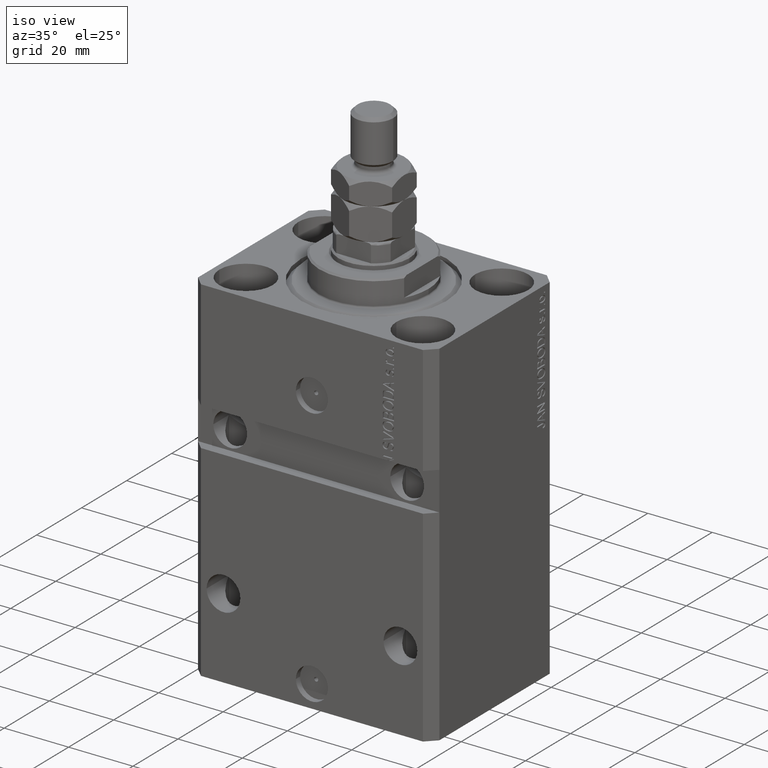
[diagram: clean part render]
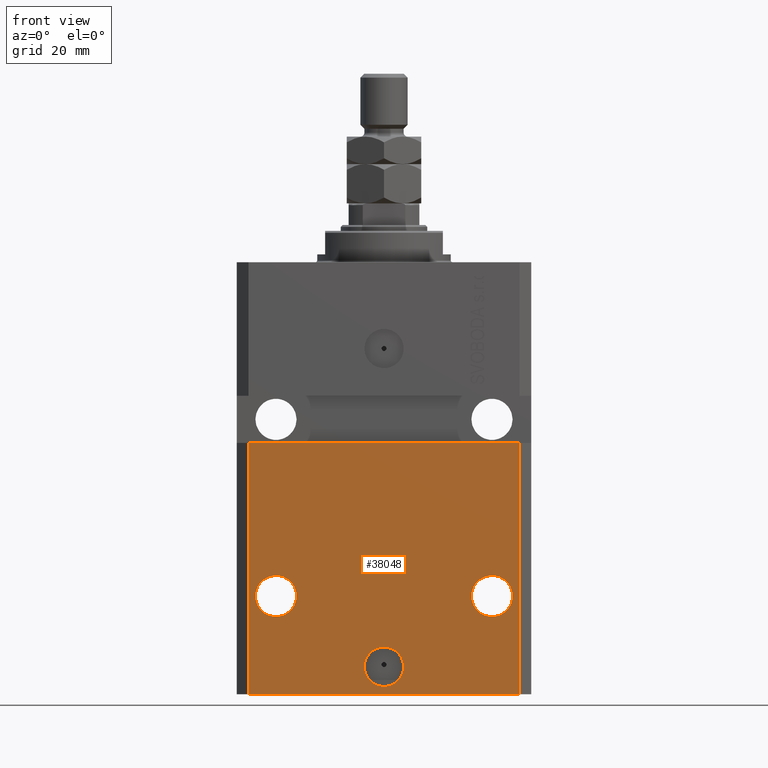
[diagram: tour spotlight — one face highlighted and labeled with its STEP entity id]
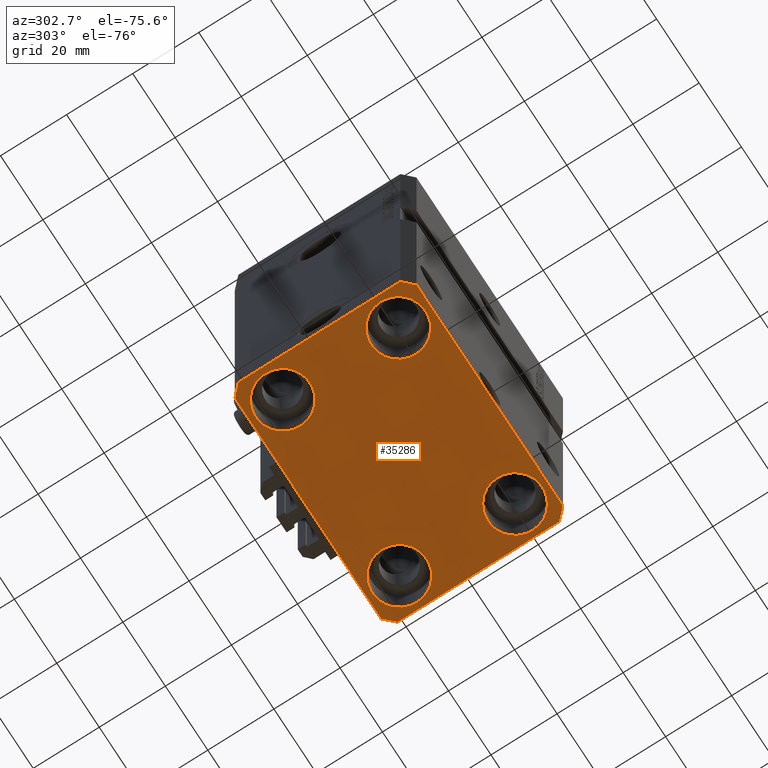
[diagram: tour spotlight — one face highlighted and labeled with its STEP entity id]
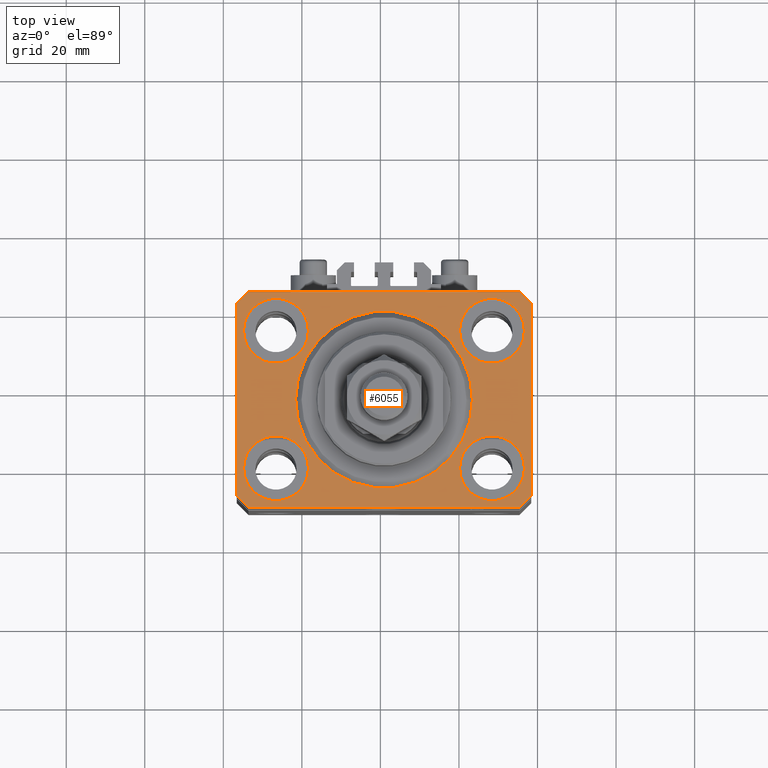
[diagram: tour spotlight — one face highlighted and labeled with its STEP entity id]
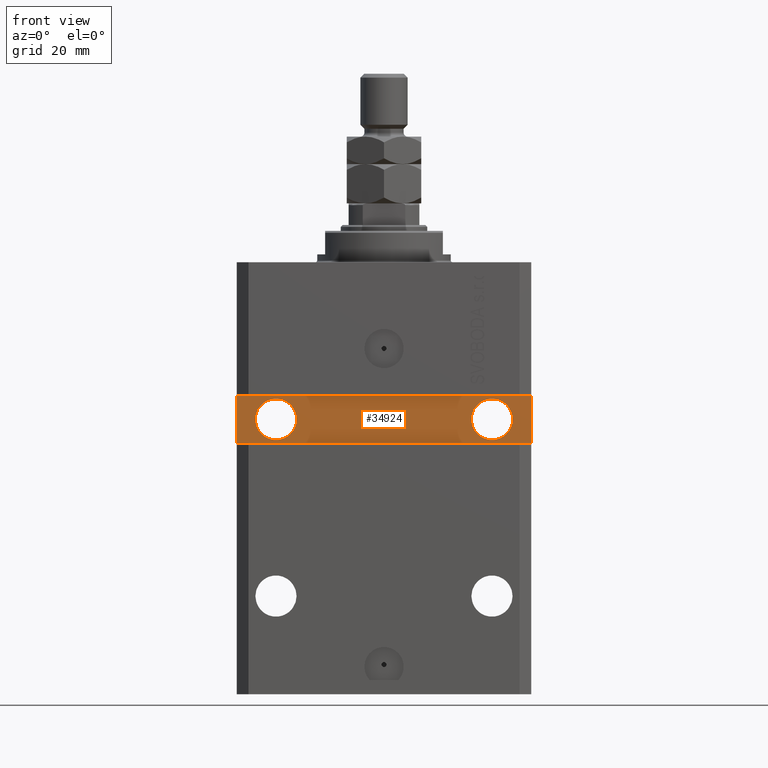
[diagram: tour spotlight — one face highlighted and labeled with its STEP entity id]
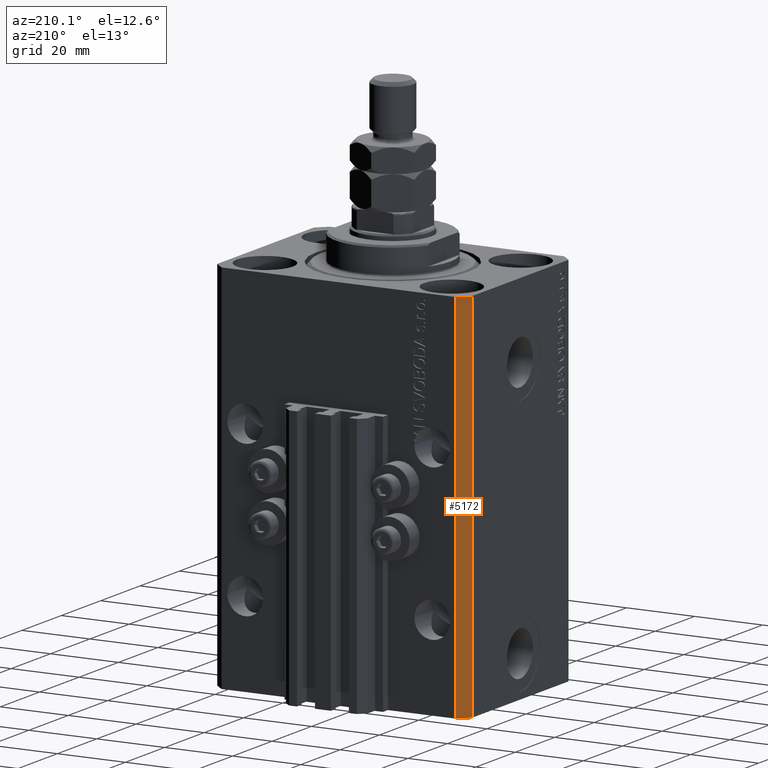
[diagram: tour spotlight — one face highlighted and labeled with its STEP entity id]
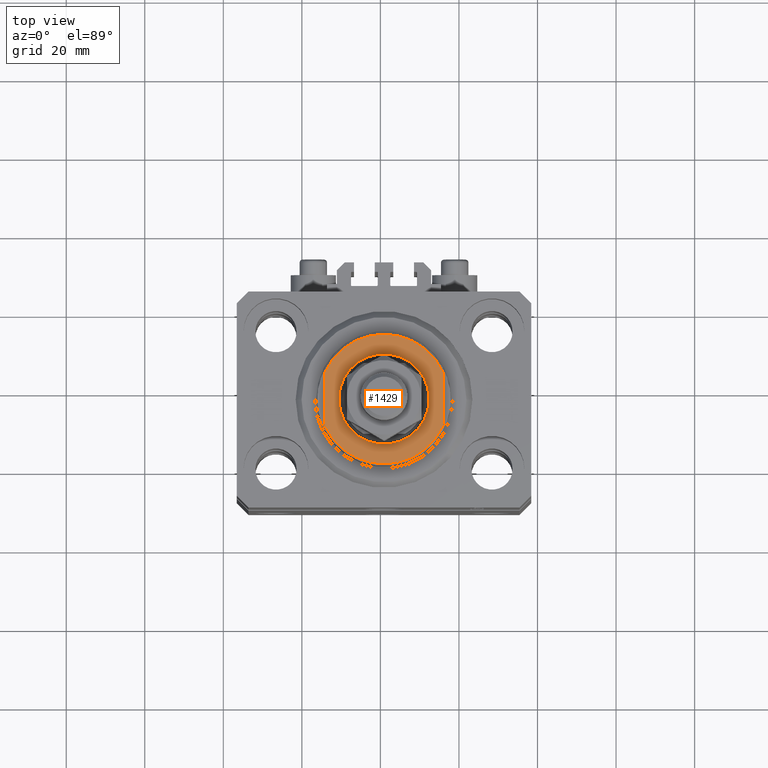
[diagram: tour spotlight — one face highlighted and labeled with its STEP entity id]
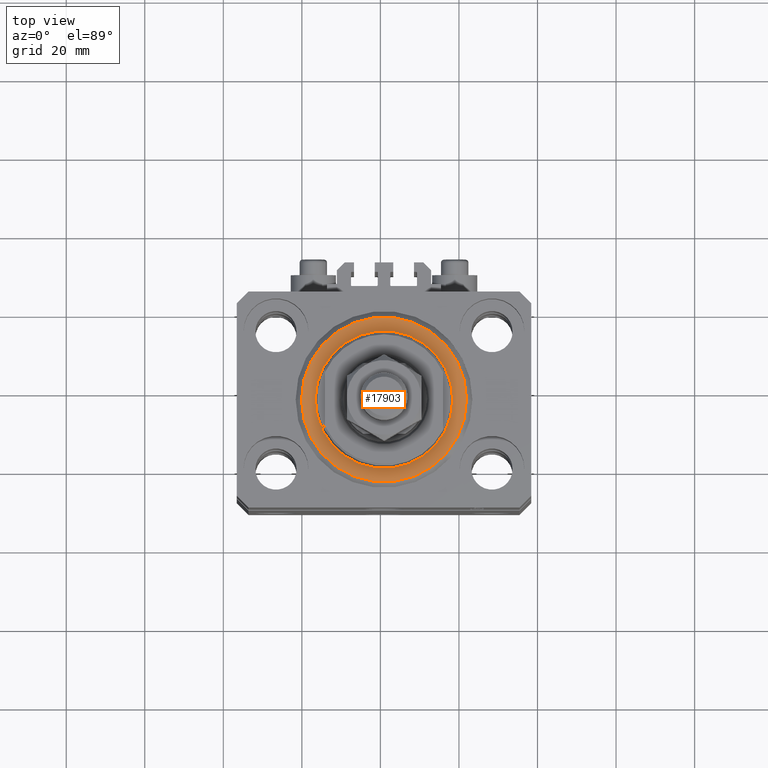
[diagram: tour spotlight — one face highlighted and labeled with its STEP entity id]
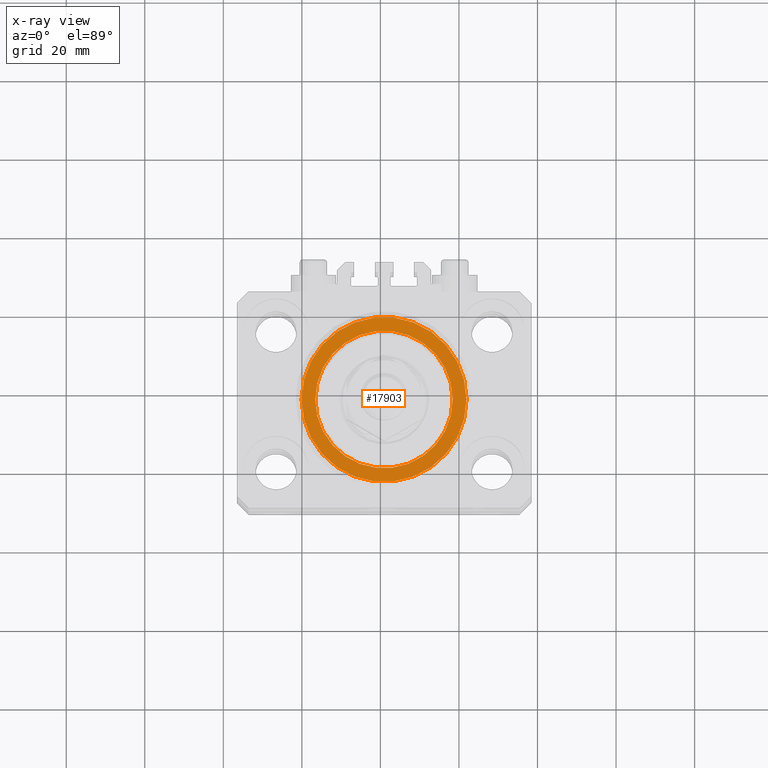
[diagram: x-ray of the same camera — body ghosted, this tour face saturated]
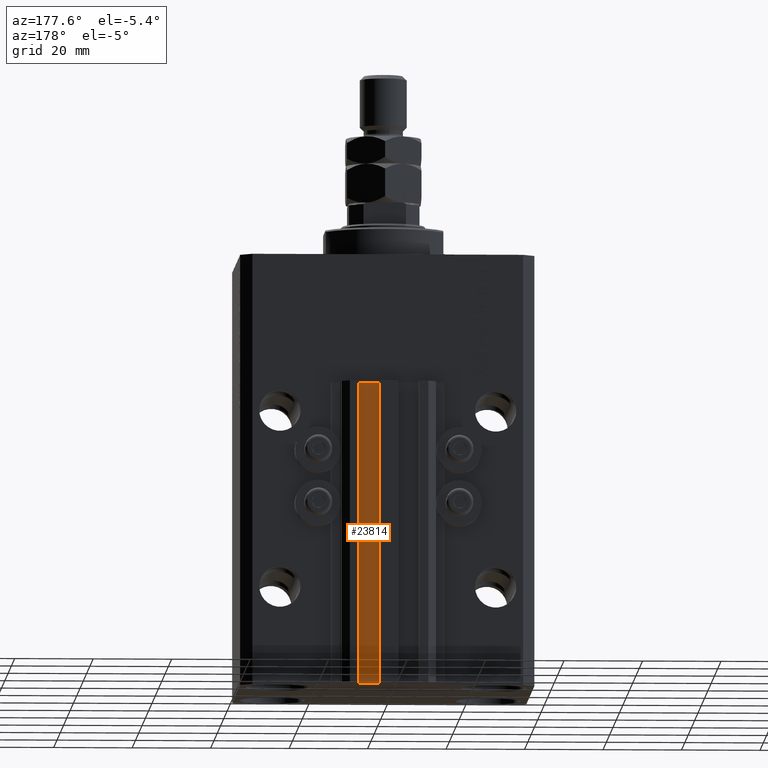
[diagram: tour spotlight — one face highlighted and labeled with its STEP entity id]
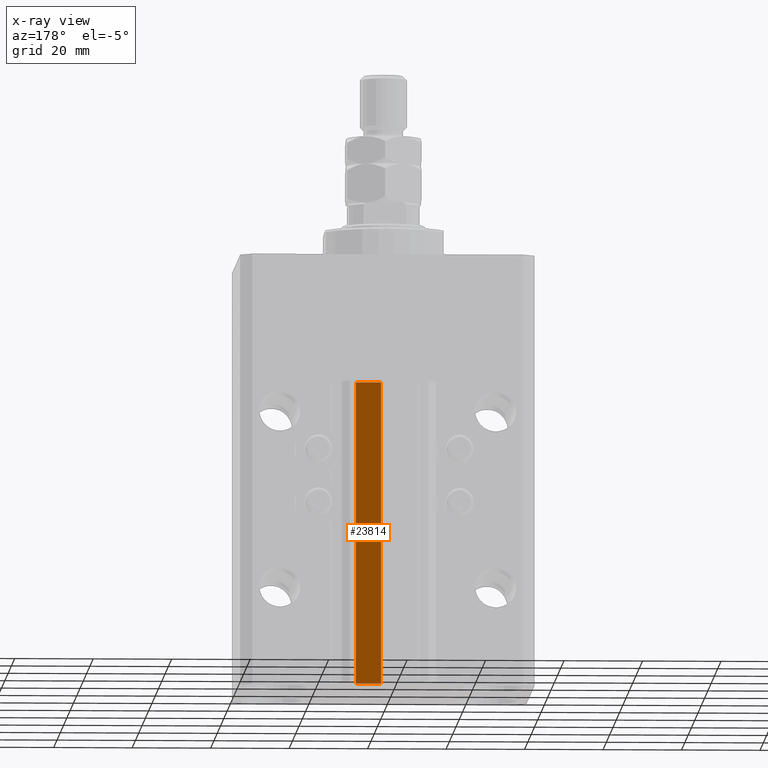
[diagram: x-ray of the same camera — body ghosted, this tour face saturated]
A machine part: a face-by-face anatomy tour. The part has 1133 B-rep faces; the first image is the clean iso view, then the 8 largest visible faces are spotlighted one at a time (largest first), each with its STEP entity span.

Face 1 — front view, entity #38048. In plain terms, the highlighted planar face has unit normal (0, -1, 0).
Definition (entity closure, byte-faithful):
#106 = VECTOR ( 'NONE', #40966, 1000.000000000000000 ) ;
#1603 = CIRCLE ( 'NONE', #10305, 5.249999999999994671 ) ;
#2224 = EDGE_CURVE ( 'NONE', #17866, #39886, #28476, .T. ) ;
#2874 = VERTEX_POINT ( 'NONE', #47853 ) ;
#3525 = LINE ( 'NONE', #22601, #45250 ) ;
#3618 = LINE ( 'NONE', #44459, #106 ) ;
#3671 = DIRECTION ( 'NONE',  ( 1.176083712526788232E-16, -1.000000000000000000, 0.000000000000000000 ) ) ;
#4182 = CARTESIAN_POINT ( 'NONE',  ( 0.000000000000000000, -27.49999999999999645, -103.0000000000000000 ) ) ;
#4542 = CIRCLE ( 'NONE', #43250, 5.249999999999994671 ) ;
#4567 = VERTEX_POINT ( 'NONE', #46966 ) ;
#5282 = DIRECTION ( 'NONE',  ( 0.000000000000000000, -1.000000000000000000, 0.000000000000000000 ) ) ;
#5559 = EDGE_LOOP ( 'NONE', ( #21292, #29513 ) ) ;
#6040 = DIRECTION ( 'NONE',  ( 0.000000000000000000, 0.000000000000000000, 1.000000000000000000 ) ) ;
#7742 = VERTEX_POINT ( 'NONE', #39015 ) ;
#7996 = ORIENTED_EDGE ( 'NONE', *, *, #36182, .F. ) ;
#9021 = CARTESIAN_POINT ( 'NONE',  ( -22.25000000000002132, -27.50000000000000000, -84.99999999999998579 ) ) ;
#9140 = CARTESIAN_POINT ( 'NONE',  ( 34.49999999999999289, -27.49999999999999645, -110.0000000000000000 ) ) ;
#10133 = VERTEX_POINT ( 'NONE', #31031 ) ;
#10305 = AXIS2_PLACEMENT_3D ( 'NONE', #48509, #29015, #43839 ) ;
#11349 = CARTESIAN_POINT ( 'NONE',  ( 27.50000000000001421, -27.49999999999999289, -84.99999999999998579 ) ) ;
#11711 = AXIS2_PLACEMENT_3D ( 'NONE', #16076, #39297, #35109 ) ;
#11808 = ORIENTED_EDGE ( 'NONE', *, *, #24755, .F. ) ;
#11939 = DIRECTION ( 'NONE',  ( 1.000000000000000000, 9.251858538542972814E-17, -9.251858538542972814E-17 ) ) ;
#12466 = FACE_BOUND ( 'NONE', #5559, .T. ) ;
#12934 = EDGE_CURVE ( 'NONE', #31500, #40794, #4542, .T. ) ;
#13204 = FACE_BOUND ( 'NONE', #41435, .T. ) ;
#15488 = EDGE_CURVE ( 'NONE', #4567, #10133, #39916, .T. ) ;
#15719 = EDGE_LOOP ( 'NONE', ( #21053, #7996 ) ) ;
#16076 = CARTESIAN_POINT ( 'NONE',  ( -27.50000000000001421, -27.50000000000000000, -84.99999999999998579 ) ) ;
#16676 = FACE_OUTER_BOUND ( 'NONE', #20486, .T. ) ;
#17866 = VERTEX_POINT ( 'NONE', #18452 ) ;
#17912 = VECTOR ( 'NONE', #48388, 1000.000000000000000 ) ;
#18452 = CARTESIAN_POINT ( 'NONE',  ( 22.25000000000002132, -27.49999999999999289, -84.99999999999998579 ) ) ;
#18781 = DIRECTION ( 'NONE',  ( 1.000000000000000000, 0.000000000000000000, 0.000000000000000000 ) ) ;
#19086 = CARTESIAN_POINT ( 'NONE',  ( 32.75000000000000711, -27.49999999999999289, -84.99999999999998579 ) ) ;
#20254 = DIRECTION ( 'NONE',  ( 1.176083712526788232E-16, -1.000000000000000000, 0.000000000000000000 ) ) ;
#20486 = EDGE_LOOP ( 'NONE', ( #11808, #42291, #29362, #34192 ) ) ;
#21001 = DIRECTION ( 'NONE',  ( 1.000000000000000000, 0.000000000000000000, 0.000000000000000000 ) ) ;
#21053 = ORIENTED_EDGE ( 'NONE', *, *, #12934, .F. ) ;
#21292 = ORIENTED_EDGE ( 'NONE', *, *, #41132, .F. ) ;
#21349 = EDGE_CURVE ( 'NONE', #32639, #2874, #29363, .T. ) ;
#22601 = CARTESIAN_POINT ( 'NONE',  ( -37.50000000000000000, -27.50000000000000000, -46.00000000000000000 ) ) ;
#22998 = DIRECTION ( 'NONE',  ( 1.000000000000000000, 0.000000000000000000, 0.000000000000000000 ) ) ;
#23351 = CARTESIAN_POINT ( 'NONE',  ( -5.000000000000006217, -27.49999999999999645, -103.0000000000000000 ) ) ;
#24594 = ORIENTED_EDGE ( 'NONE', *, *, #46446, .F. ) ;
#24755 = EDGE_CURVE ( 'NONE', #10133, #7742, #3525, .T. ) ;
#25359 = CARTESIAN_POINT ( 'NONE',  ( -34.49999999999998579, -27.49999999999999645, -110.0000000000000000 ) ) ;
#26154 = CARTESIAN_POINT ( 'NONE',  ( 34.49999999999999289, -27.49999999999999645, -110.0000000000000000 ) ) ;
#27576 = FACE_BOUND ( 'NONE', #15719, .T. ) ;
#28313 = DIRECTION ( 'NONE',  ( 0.000000000000000000, -0.000000000000000000, -1.000000000000000000 ) ) ;
#28476 = CIRCLE ( 'NONE', #33980, 5.249999999999994671 ) ;
#29015 = DIRECTION ( 'NONE',  ( 1.176083712526788232E-16, -1.000000000000000000, 0.000000000000000000 ) ) ;
#29150 = VECTOR ( 'NONE', #6040, 1000.000000000000000 ) ;
#29362 = ORIENTED_EDGE ( 'NONE', *, *, #47578, .T. ) ;
#29363 = CIRCLE ( 'NONE', #37239, 5.000000000000006217 ) ;
#29513 = ORIENTED_EDGE ( 'NONE', *, *, #2224, .F. ) ;
#29870 = CARTESIAN_POINT ( 'NONE',  ( -27.50000000000001421, -27.50000000000000000, -84.99999999999998579 ) ) ;
#31031 = CARTESIAN_POINT ( 'NONE',  ( -34.49999999999998579, -27.50000000000000000, -46.00000000000000000 ) ) ;
#31500 = VERTEX_POINT ( 'NONE', #9021 ) ;
#32328 = EDGE_CURVE ( 'NONE', #39590, #7742, #33300, .T. ) ;
#32639 = VERTEX_POINT ( 'NONE', #23351 ) ;
#33300 = LINE ( 'NONE', #26154, #17912 ) ;
#33980 = AXIS2_PLACEMENT_3D ( 'NONE', #11349, #38278, #22998 ) ;
#34192 = ORIENTED_EDGE ( 'NONE', *, *, #32328, .T. ) ;
#35109 = DIRECTION ( 'NONE',  ( -1.000000000000000000, 0.000000000000000000, 0.000000000000000000 ) ) ;
#35270 = DIRECTION ( 'NONE',  ( -1.000000000000000000, 0.000000000000000000, 0.000000000000000000 ) ) ;
#35325 = CARTESIAN_POINT ( 'NONE',  ( 0.000000000000000000, -27.49999999999999645, -103.0000000000000000 ) ) ;
#36182 = EDGE_CURVE ( 'NONE', #40794, #31500, #48811, .T. ) ;
#37239 = AXIS2_PLACEMENT_3D ( 'NONE', #35325, #20254, #21001 ) ;
#37619 = ORIENTED_EDGE ( 'NONE', *, *, #21349, .F. ) ;
#38048 = ADVANCED_FACE ( 'NONE', ( #13204, #12466, #27576, #16676 ), #38919, .T. ) ;
#38278 = DIRECTION ( 'NONE',  ( 1.176083712526788232E-16, -1.000000000000000000, 0.000000000000000000 ) ) ;
#38772 = CIRCLE ( 'NONE', #41170, 5.000000000000006217 ) ;
#38919 = PLANE ( 'NONE',  #44898 ) ;
#38973 = DIRECTION ( 'NONE',  ( 1.176083712526788232E-16, -1.000000000000000000, 0.000000000000000000 ) ) ;
#39015 = CARTESIAN_POINT ( 'NONE',  ( 34.49999999999999289, -27.49999999999999289, -46.00000000000000711 ) ) ;
#39297 = DIRECTION ( 'NONE',  ( 1.176083712526788232E-16, -1.000000000000000000, 0.000000000000000000 ) ) ;
#39590 = VERTEX_POINT ( 'NONE', #9140 ) ;
#39886 = VERTEX_POINT ( 'NONE', #19086 ) ;
#39916 = LINE ( 'NONE', #25359, #29150 ) ;
#40794 = VERTEX_POINT ( 'NONE', #44856 ) ;
#40966 = DIRECTION ( 'NONE',  ( 1.000000000000000000, 0.000000000000000000, 0.000000000000000000 ) ) ;
#41132 = EDGE_CURVE ( 'NONE', #39886, #17866, #1603, .T. ) ;
#41170 = AXIS2_PLACEMENT_3D ( 'NONE', #4182, #3671, #18781 ) ;
#41435 = EDGE_LOOP ( 'NONE', ( #24594, #37619 ) ) ;
#42291 = ORIENTED_EDGE ( 'NONE', *, *, #15488, .F. ) ;
#42390 = CARTESIAN_POINT ( 'NONE',  ( -34.49999999999998579, -27.49999999999999645, -110.0000000000000000 ) ) ;
#43250 = AXIS2_PLACEMENT_3D ( 'NONE', #29870, #38973, #35270 ) ;
#43839 = DIRECTION ( 'NONE',  ( 1.000000000000000000, 0.000000000000000000, 0.000000000000000000 ) ) ;
#44459 = CARTESIAN_POINT ( 'NONE',  ( -34.49999999999998579, -27.49999999999999645, -110.0000000000000000 ) ) ;
#44856 = CARTESIAN_POINT ( 'NONE',  ( -32.75000000000000711, -27.50000000000000000, -84.99999999999998579 ) ) ;
#44898 = AXIS2_PLACEMENT_3D ( 'NONE', #42390, #5282, #28313 ) ;
#45250 = VECTOR ( 'NONE', #11939, 1000.000000000000000 ) ;
#46446 = EDGE_CURVE ( 'NONE', #2874, #32639, #38772, .T. ) ;
#46966 = CARTESIAN_POINT ( 'NONE',  ( -34.49999999999998579, -27.49999999999999645, -110.0000000000000000 ) ) ;
#47578 = EDGE_CURVE ( 'NONE', #4567, #39590, #3618, .T. ) ;
#47853 = CARTESIAN_POINT ( 'NONE',  ( 5.000000000000006217, -27.49999999999999645, -103.0000000000000000 ) ) ;
#48388 = DIRECTION ( 'NONE',  ( 0.000000000000000000, 0.000000000000000000, 1.000000000000000000 ) ) ;
#48509 = CARTESIAN_POINT ( 'NONE',  ( 27.50000000000001421, -27.49999999999999289, -84.99999999999998579 ) ) ;
#48811 = CIRCLE ( 'NONE', #11711, 5.249999999999994671 ) ;

Face 2 — auxiliary view, entity #35286. In plain terms, the highlighted planar face has unit normal (0, 0, 1).
Definition (entity closure, byte-faithful):
#96 = LINE ( 'NONE', #576, #28334 ) ;
#106 = VECTOR ( 'NONE', #40966, 1000.000000000000000 ) ;
#390 = CARTESIAN_POINT ( 'NONE',  ( -19.25000000000000355, -17.50000000000000000, -110.0000000000000000 ) ) ;
#576 = CARTESIAN_POINT ( 'NONE',  ( -37.49999999999999289, 24.50000000000000000, -110.0000000000000000 ) ) ;
#1894 = EDGE_LOOP ( 'NONE', ( #5008, #22260 ) ) ;
#1903 = ORIENTED_EDGE ( 'NONE', *, *, #16528, .F. ) ;
#1904 = ORIENTED_EDGE ( 'NONE', *, *, #48403, .T. ) ;
#2017 = EDGE_LOOP ( 'NONE', ( #1904, #31658 ) ) ;
#2020 = LINE ( 'NONE', #43338, #29214 ) ;
#2105 = AXIS2_PLACEMENT_3D ( 'NONE', #11167, #26286, #41331 ) ;
#2643 = EDGE_LOOP ( 'NONE', ( #12638, #21231 ) ) ;
#3618 = LINE ( 'NONE', #44459, #106 ) ;
#3947 = LINE ( 'NONE', #48956, #41512 ) ;
#4467 = EDGE_CURVE ( 'NONE', #7757, #31123, #3947, .T. ) ;
#4567 = VERTEX_POINT ( 'NONE', #46966 ) ;
#4936 = ORIENTED_EDGE ( 'NONE', *, *, #4467, .F. ) ;
#5008 = ORIENTED_EDGE ( 'NONE', *, *, #25054, .T. ) ;
#5135 = CARTESIAN_POINT ( 'NONE',  ( 37.50000000000051870, 24.49999999999995381, -110.0000000000000000 ) ) ;
#6041 = ORIENTED_EDGE ( 'NONE', *, *, #21846, .F. ) ;
#6182 = VERTEX_POINT ( 'NONE', #6506 ) ;
#6506 = CARTESIAN_POINT ( 'NONE',  ( -19.25000000000000355, 17.50000000000000000, -110.0000000000000000 ) ) ;
#7308 = FACE_BOUND ( 'NONE', #2643, .T. ) ;
#7757 = VERTEX_POINT ( 'NONE', #5135 ) ;
#7957 = DIRECTION ( 'NONE',  ( 1.000000000000000000, 0.000000000000000000, 0.000000000000000000 ) ) ;
#8148 = DIRECTION ( 'NONE',  ( -0.7071067811865356934, 0.7071067811865594521, 0.000000000000000000 ) ) ;
#9140 = CARTESIAN_POINT ( 'NONE',  ( 34.49999999999999289, -27.49999999999999645, -110.0000000000000000 ) ) ;
#9705 = DIRECTION ( 'NONE',  ( 0.7071067811865474617, 0.7071067811865474617, 0.000000000000000000 ) ) ;
#10060 = CARTESIAN_POINT ( 'NONE',  ( 19.25000000000000000, 17.50000000000001066, -110.0000000000000000 ) ) ;
#10266 = CIRCLE ( 'NONE', #48188, 8.249999999999992895 ) ;
#10964 = CARTESIAN_POINT ( 'NONE',  ( 34.50000000000056843, 27.50000000000000000, -110.0000000000000000 ) ) ;
#11011 = CARTESIAN_POINT ( 'NONE',  ( 0.000000000000000000, 0.000000000000000000, -110.0000000000000000 ) ) ;
#11167 = CARTESIAN_POINT ( 'NONE',  ( -27.50000000000000355, -17.50000000000000000, -110.0000000000000000 ) ) ;
#11885 = VECTOR ( 'NONE', #43444, 1000.000000000000000 ) ;
#11998 = VERTEX_POINT ( 'NONE', #12206 ) ;
#12008 = ORIENTED_EDGE ( 'NONE', *, *, #34217, .F. ) ;
#12206 = CARTESIAN_POINT ( 'NONE',  ( 37.49999999999999289, -24.50000000000000000, -110.0000000000000000 ) ) ;
#12638 = ORIENTED_EDGE ( 'NONE', *, *, #36126, .T. ) ;
#14445 = CARTESIAN_POINT ( 'NONE',  ( -37.49999999999999289, 24.50000000000000000, -110.0000000000000000 ) ) ;
#14932 = VERTEX_POINT ( 'NONE', #36328 ) ;
#15131 = CIRCLE ( 'NONE', #42783, 8.250000000000000000 ) ;
#15141 = CARTESIAN_POINT ( 'NONE',  ( -35.75000000000000711, 17.50000000000000000, -110.0000000000000000 ) ) ;
#15831 = DIRECTION ( 'NONE',  ( 1.000000000000000000, 0.000000000000000000, 0.000000000000000000 ) ) ;
#16167 = DIRECTION ( 'NONE',  ( 1.076236605503979380E-14, 1.000000000000000000, 0.000000000000000000 ) ) ;
#16300 = CARTESIAN_POINT ( 'NONE',  ( 27.50000000000000355, -17.50000000000000000, -110.0000000000000000 ) ) ;
#16528 = EDGE_CURVE ( 'NONE', #31123, #26170, #44850, .T. ) ;
#16781 = CIRCLE ( 'NONE', #48361, 8.250000000000000000 ) ;
#16813 = EDGE_CURVE ( 'NONE', #39590, #11998, #2020, .T. ) ;
#17454 = CARTESIAN_POINT ( 'NONE',  ( 35.75000000000000711, -17.50000000000000000, -110.0000000000000000 ) ) ;
#17557 = EDGE_LOOP ( 'NONE', ( #47901, #23635 ) ) ;
#17576 = VERTEX_POINT ( 'NONE', #14445 ) ;
#18292 = DIRECTION ( 'NONE',  ( 1.000000000000000000, 0.000000000000000000, 0.000000000000000000 ) ) ;
#18520 = ORIENTED_EDGE ( 'NONE', *, *, #47578, .F. ) ;
#19514 = CIRCLE ( 'NONE', #2105, 8.250000000000000000 ) ;
#19609 = AXIS2_PLACEMENT_3D ( 'NONE', #11011, #37458, #33758 ) ;
#19898 = VECTOR ( 'NONE', #16167, 1000.000000000000000 ) ;
#19918 = CIRCLE ( 'NONE', #47551, 8.250000000000000000 ) ;
#20005 = DIRECTION ( 'NONE',  ( -0.000000000000000000, -0.000000000000000000, 1.000000000000000000 ) ) ;
#20266 = DIRECTION ( 'NONE',  ( 1.000000000000000000, 0.000000000000000000, 0.000000000000000000 ) ) ;
#21209 = CIRCLE ( 'NONE', #33036, 8.250000000000000000 ) ;
#21231 = ORIENTED_EDGE ( 'NONE', *, *, #26833, .T. ) ;
#21585 = ORIENTED_EDGE ( 'NONE', *, *, #16813, .F. ) ;
#21846 = EDGE_CURVE ( 'NONE', #11998, #7757, #31505, .T. ) ;
#22260 = ORIENTED_EDGE ( 'NONE', *, *, #33741, .T. ) ;
#22706 = CARTESIAN_POINT ( 'NONE',  ( -37.49999999999999289, -24.50000000000000000, -110.0000000000000000 ) ) ;
#23635 = ORIENTED_EDGE ( 'NONE', *, *, #40339, .T. ) ;
#24248 = DIRECTION ( 'NONE',  ( -0.000000000000000000, -0.000000000000000000, 1.000000000000000000 ) ) ;
#25054 = EDGE_CURVE ( 'NONE', #14932, #47607, #15131, .T. ) ;
#25886 = FACE_BOUND ( 'NONE', #2017, .T. ) ;
#26109 = CIRCLE ( 'NONE', #38703, 8.249999999999992895 ) ;
#26170 = VERTEX_POINT ( 'NONE', #40551 ) ;
#26183 = CARTESIAN_POINT ( 'NONE',  ( -34.49999999999999289, 27.50000000000000000, -110.0000000000000000 ) ) ;
#26286 = DIRECTION ( 'NONE',  ( -0.000000000000000000, -0.000000000000000000, 1.000000000000000000 ) ) ;
#26833 = EDGE_CURVE ( 'NONE', #6182, #34904, #16781, .T. ) ;
#26855 = VECTOR ( 'NONE', #30023, 1000.000000000000000 ) ;
#27302 = VERTEX_POINT ( 'NONE', #32608 ) ;
#27792 = DIRECTION ( 'NONE',  ( -0.000000000000000000, -0.000000000000000000, 1.000000000000000000 ) ) ;
#28334 = VECTOR ( 'NONE', #30301, 1000.000000000000000 ) ;
#29160 = DIRECTION ( 'NONE',  ( -0.7071067811865471286, -0.7071067811865479058, 0.000000000000000000 ) ) ;
#29214 = VECTOR ( 'NONE', #9705, 1000.000000000000114 ) ;
#29354 = PLANE ( 'NONE',  #19609 ) ;
#30023 = DIRECTION ( 'NONE',  ( -1.000000000000000000, 0.000000000000000000, 0.000000000000000000 ) ) ;
#30301 = DIRECTION ( 'NONE',  ( 0.000000000000000000, -1.000000000000000000, 0.000000000000000000 ) ) ;
#30368 = EDGE_LOOP ( 'NONE', ( #1903, #4936, #6041, #21585, #18520, #30567, #32292, #12008 ) ) ;
#30567 = ORIENTED_EDGE ( 'NONE', *, *, #44871, .F. ) ;
#30930 = DIRECTION ( 'NONE',  ( -0.000000000000000000, -0.000000000000000000, 1.000000000000000000 ) ) ;
#31123 = VERTEX_POINT ( 'NONE', #41999 ) ;
#31505 = LINE ( 'NONE', #42873, #19898 ) ;
#31658 = ORIENTED_EDGE ( 'NONE', *, *, #40996, .T. ) ;
#32071 = LINE ( 'NONE', #46658, #11885 ) ;
#32292 = ORIENTED_EDGE ( 'NONE', *, *, #36997, .F. ) ;
#32608 = CARTESIAN_POINT ( 'NONE',  ( 35.74999999999999289, 17.50000000000001066, -110.0000000000000000 ) ) ;
#32846 = LINE ( 'NONE', #26183, #44027 ) ;
#33036 = AXIS2_PLACEMENT_3D ( 'NONE', #38559, #24248, #42528 ) ;
#33058 = CARTESIAN_POINT ( 'NONE',  ( 19.25000000000000000, -17.50000000000000000, -110.0000000000000000 ) ) ;
#33112 = CARTESIAN_POINT ( 'NONE',  ( 27.49999999999999645, 17.50000000000001066, -110.0000000000000000 ) ) ;
#33741 = EDGE_CURVE ( 'NONE', #47607, #14932, #19514, .T. ) ;
#33758 = DIRECTION ( 'NONE',  ( 1.000000000000000000, 0.000000000000000000, -0.000000000000000000 ) ) ;
#34217 = EDGE_CURVE ( 'NONE', #26170, #17576, #32846, .T. ) ;
#34904 = VERTEX_POINT ( 'NONE', #15141 ) ;
#35286 = ADVANCED_FACE ( 'NONE', ( #41176, #25886, #48602, #7308, #44896 ), #29354, .F. ) ;
#36075 = DIRECTION ( 'NONE',  ( -0.000000000000000000, -0.000000000000000000, 1.000000000000000000 ) ) ;
#36126 = EDGE_CURVE ( 'NONE', #34904, #6182, #21209, .T. ) ;
#36167 = DIRECTION ( 'NONE',  ( 1.000000000000000000, 0.000000000000000000, 0.000000000000000000 ) ) ;
#36328 = CARTESIAN_POINT ( 'NONE',  ( -35.75000000000000711, -17.50000000000000000, -110.0000000000000000 ) ) ;
#36521 = VERTEX_POINT ( 'NONE', #10060 ) ;
#36997 = EDGE_CURVE ( 'NONE', #17576, #44183, #96, .T. ) ;
#37126 = AXIS2_PLACEMENT_3D ( 'NONE', #46558, #27792, #36167 ) ;
#37146 = CARTESIAN_POINT ( 'NONE',  ( -27.50000000000000355, 17.50000000000000000, -110.0000000000000000 ) ) ;
#37458 = DIRECTION ( 'NONE',  ( 0.000000000000000000, 0.000000000000000000, 1.000000000000000000 ) ) ;
#38273 = DIRECTION ( 'NONE',  ( 1.000000000000000000, 0.000000000000000000, 0.000000000000000000 ) ) ;
#38559 = CARTESIAN_POINT ( 'NONE',  ( -27.50000000000000355, 17.50000000000000000, -110.0000000000000000 ) ) ;
#38703 = AXIS2_PLACEMENT_3D ( 'NONE', #41259, #48205, #18292 ) ;
#39590 = VERTEX_POINT ( 'NONE', #9140 ) ;
#40238 = EDGE_CURVE ( 'NONE', #36521, #27302, #26109, .T. ) ;
#40339 = EDGE_CURVE ( 'NONE', #27302, #36521, #10266, .T. ) ;
#40551 = CARTESIAN_POINT ( 'NONE',  ( -34.49999999999999289, 27.50000000000000000, -110.0000000000000000 ) ) ;
#40966 = DIRECTION ( 'NONE',  ( 1.000000000000000000, 0.000000000000000000, 0.000000000000000000 ) ) ;
#40996 = EDGE_CURVE ( 'NONE', #41672, #45967, #48948, .T. ) ;
#41176 = FACE_BOUND ( 'NONE', #1894, .T. ) ;
#41259 = CARTESIAN_POINT ( 'NONE',  ( 27.49999999999999645, 17.50000000000001066, -110.0000000000000000 ) ) ;
#41331 = DIRECTION ( 'NONE',  ( 1.000000000000000000, 0.000000000000000000, 0.000000000000000000 ) ) ;
#41512 = VECTOR ( 'NONE', #8148, 1000.000000000000114 ) ;
#41672 = VERTEX_POINT ( 'NONE', #17454 ) ;
#41830 = DIRECTION ( 'NONE',  ( -0.000000000000000000, -0.000000000000000000, 1.000000000000000000 ) ) ;
#41999 = CARTESIAN_POINT ( 'NONE',  ( 34.50000000000056843, 27.50000000000000000, -110.0000000000000000 ) ) ;
#42528 = DIRECTION ( 'NONE',  ( 1.000000000000000000, 0.000000000000000000, 0.000000000000000000 ) ) ;
#42783 = AXIS2_PLACEMENT_3D ( 'NONE', #46984, #30930, #15831 ) ;
#42873 = CARTESIAN_POINT ( 'NONE',  ( 37.49999999999999289, -24.50000000000000000, -110.0000000000000000 ) ) ;
#43338 = CARTESIAN_POINT ( 'NONE',  ( 34.49999999999999289, -27.49999999999999645, -110.0000000000000000 ) ) ;
#43444 = DIRECTION ( 'NONE',  ( 0.7071067811865483499, -0.7071067811865466846, 0.000000000000000000 ) ) ;
#44027 = VECTOR ( 'NONE', #29160, 1000.000000000000000 ) ;
#44183 = VERTEX_POINT ( 'NONE', #22706 ) ;
#44459 = CARTESIAN_POINT ( 'NONE',  ( -34.49999999999998579, -27.49999999999999645, -110.0000000000000000 ) ) ;
#44850 = LINE ( 'NONE', #10964, #26855 ) ;
#44871 = EDGE_CURVE ( 'NONE', #44183, #4567, #32071, .T. ) ;
#44896 = FACE_OUTER_BOUND ( 'NONE', #30368, .T. ) ;
#45967 = VERTEX_POINT ( 'NONE', #33058 ) ;
#46558 = CARTESIAN_POINT ( 'NONE',  ( 27.50000000000000355, -17.50000000000000000, -110.0000000000000000 ) ) ;
#46658 = CARTESIAN_POINT ( 'NONE',  ( -37.49999999999999289, -24.50000000000000000, -110.0000000000000000 ) ) ;
#46966 = CARTESIAN_POINT ( 'NONE',  ( -34.49999999999998579, -27.49999999999999645, -110.0000000000000000 ) ) ;
#46984 = CARTESIAN_POINT ( 'NONE',  ( -27.50000000000000355, -17.50000000000000000, -110.0000000000000000 ) ) ;
#47551 = AXIS2_PLACEMENT_3D ( 'NONE', #16300, #36075, #20266 ) ;
#47578 = EDGE_CURVE ( 'NONE', #4567, #39590, #3618, .T. ) ;
#47607 = VERTEX_POINT ( 'NONE', #390 ) ;
#47901 = ORIENTED_EDGE ( 'NONE', *, *, #40238, .T. ) ;
#48188 = AXIS2_PLACEMENT_3D ( 'NONE', #33112, #20005, #38273 ) ;
#48205 = DIRECTION ( 'NONE',  ( -0.000000000000000000, -0.000000000000000000, 1.000000000000000000 ) ) ;
#48361 = AXIS2_PLACEMENT_3D ( 'NONE', #37146, #41830, #7957 ) ;
#48403 = EDGE_CURVE ( 'NONE', #45967, #41672, #19918, .T. ) ;
#48602 = FACE_BOUND ( 'NONE', #17557, .T. ) ;
#48948 = CIRCLE ( 'NONE', #37126, 8.250000000000000000 ) ;
#48956 = CARTESIAN_POINT ( 'NONE',  ( 37.50000000000051870, 24.49999999999995381, -110.0000000000000000 ) ) ;

Face 3 — top view, entity #6055. In plain terms, the highlighted planar face has unit normal (0, 0, 1).
Definition (entity closure, byte-faithful):
#45 = ORIENTED_EDGE ( 'NONE', *, *, #6835, .F. ) ;
#191 = VECTOR ( 'NONE', #8995, 1000.000000000000114 ) ;
#627 = ORIENTED_EDGE ( 'NONE', *, *, #25519, .T. ) ;
#756 = CARTESIAN_POINT ( 'NONE',  ( 34.49999999999999289, -27.49999999999999645, 0.000000000000000000 ) ) ;
#825 = VECTOR ( 'NONE', #20478, 1000.000000000000000 ) ;
#1631 = VECTOR ( 'NONE', #10559, 1000.000000000000000 ) ;
#1715 = AXIS2_PLACEMENT_3D ( 'NONE', #4721, #42073, #23304 ) ;
#1810 = EDGE_CURVE ( 'NONE', #22085, #36823, #14977, .T. ) ;
#1830 = DIRECTION ( 'NONE',  ( -1.000000000000000000, 0.000000000000000000, 0.000000000000000000 ) ) ;
#2276 = DIRECTION ( 'NONE',  ( 1.000000000000000000, 0.000000000000000000, 0.000000000000000000 ) ) ;
#2799 = CARTESIAN_POINT ( 'NONE',  ( 35.75000000000000711, -17.50000000000000000, 0.000000000000000000 ) ) ;
#2825 = EDGE_CURVE ( 'NONE', #48060, #8735, #8698, .T. ) ;
#2910 = ORIENTED_EDGE ( 'NONE', *, *, #40529, .T. ) ;
#2918 = CARTESIAN_POINT ( 'NONE',  ( 27.50000000000000355, -17.50000000000000000, 0.000000000000000000 ) ) ;
#3090 = DIRECTION ( 'NONE',  ( 0.000000000000000000, 0.000000000000000000, 1.000000000000000000 ) ) ;
#3152 = AXIS2_PLACEMENT_3D ( 'NONE', #19696, #39427, #12243 ) ;
#3686 = EDGE_CURVE ( 'NONE', #43062, #13117, #21778, .T. ) ;
#3735 = CIRCLE ( 'NONE', #35341, 8.250000000000000000 ) ;
#4057 = LINE ( 'NONE', #48814, #42888 ) ;
#4619 = CIRCLE ( 'NONE', #11753, 8.250000000000000000 ) ;
#4721 = CARTESIAN_POINT ( 'NONE',  ( 27.49999999999999645, 17.50000000000001066, 0.000000000000000000 ) ) ;
#4913 = DIRECTION ( 'NONE',  ( 0.000000000000000000, 0.000000000000000000, 1.000000000000000000 ) ) ;
#5075 = DIRECTION ( 'NONE',  ( 1.000000000000000000, 0.000000000000000000, 0.000000000000000000 ) ) ;
#5540 = CARTESIAN_POINT ( 'NONE',  ( -37.49999999999999289, -24.50000000000000000, 0.000000000000000000 ) ) ;
#5925 = CARTESIAN_POINT ( 'NONE',  ( -34.49999999999998579, -27.49999999999999645, 0.000000000000000000 ) ) ;
#6045 = ORIENTED_EDGE ( 'NONE', *, *, #28054, .T. ) ;
#6055 = ADVANCED_FACE ( 'NONE', ( #28389, #13763, #36267, #21459, #21694, #40467 ), #9569, .T. ) ;
#6102 = DIRECTION ( 'NONE',  ( 0.000000000000000000, 0.000000000000000000, 1.000000000000000000 ) ) ;
#6208 = CARTESIAN_POINT ( 'NONE',  ( 19.25000000000000000, 17.50000000000001066, 0.000000000000000000 ) ) ;
#6282 = CARTESIAN_POINT ( 'NONE',  ( 34.50000000000056843, 27.50000000000000000, 0.000000000000000000 ) ) ;
#6835 = EDGE_CURVE ( 'NONE', #18238, #48181, #30554, .T. ) ;
#7002 = VERTEX_POINT ( 'NONE', #19461 ) ;
#7154 = CARTESIAN_POINT ( 'NONE',  ( -27.50000000000000355, 17.50000000000000000, 0.000000000000000000 ) ) ;
#7374 = VECTOR ( 'NONE', #24735, 1000.000000000000000 ) ;
#7824 = VERTEX_POINT ( 'NONE', #33308 ) ;
#8627 = VECTOR ( 'NONE', #28488, 1000.000000000000000 ) ;
#8650 = EDGE_CURVE ( 'NONE', #13117, #43062, #3735, .T. ) ;
#8698 = CIRCLE ( 'NONE', #25337, 22.50000000000000355 ) ;
#8735 = VERTEX_POINT ( 'NONE', #38291 ) ;
#8995 = DIRECTION ( 'NONE',  ( -0.7071067811865356934, 0.7071067811865594521, 0.000000000000000000 ) ) ;
#9263 = EDGE_CURVE ( 'NONE', #36823, #22085, #41649, .T. ) ;
#9569 = PLANE ( 'NONE',  #23400 ) ;
#10235 = LINE ( 'NONE', #6282, #28847 ) ;
#10262 = ORIENTED_EDGE ( 'NONE', *, *, #29421, .T. ) ;
#10559 = DIRECTION ( 'NONE',  ( 1.000000000000000000, 0.000000000000000000, 0.000000000000000000 ) ) ;
#11039 = ORIENTED_EDGE ( 'NONE', *, *, #42690, .T. ) ;
#11045 = VERTEX_POINT ( 'NONE', #5540 ) ;
#11082 = VERTEX_POINT ( 'NONE', #2799 ) ;
#11476 = AXIS2_PLACEMENT_3D ( 'NONE', #35087, #4913, #31635 ) ;
#11753 = AXIS2_PLACEMENT_3D ( 'NONE', #2918, #17789, #17054 ) ;
#11918 = CIRCLE ( 'NONE', #26141, 8.250000000000000000 ) ;
#12243 = DIRECTION ( 'NONE',  ( 1.000000000000000000, 0.000000000000000000, 0.000000000000000000 ) ) ;
#12503 = CARTESIAN_POINT ( 'NONE',  ( 0.000000000000000000, 0.000000000000000000, 0.000000000000000000 ) ) ;
#12833 = CARTESIAN_POINT ( 'NONE',  ( -35.75000000000000711, -17.50000000000000000, 0.000000000000000000 ) ) ;
#13117 = VERTEX_POINT ( 'NONE', #23145 ) ;
#13298 = EDGE_LOOP ( 'NONE', ( #36872, #15389 ) ) ;
#13662 = DIRECTION ( 'NONE',  ( 0.000000000000000000, 0.000000000000000000, 1.000000000000000000 ) ) ;
#13763 = FACE_BOUND ( 'NONE', #32812, .T. ) ;
#14750 = ORIENTED_EDGE ( 'NONE', *, *, #45990, .T. ) ;
#14977 = CIRCLE ( 'NONE', #3152, 8.250000000000000000 ) ;
#14998 = EDGE_CURVE ( 'NONE', #7824, #11082, #4619, .T. ) ;
#15389 = ORIENTED_EDGE ( 'NONE', *, *, #22614, .F. ) ;
#15777 = VERTEX_POINT ( 'NONE', #5925 ) ;
#16436 = ORIENTED_EDGE ( 'NONE', *, *, #8650, .F. ) ;
#16740 = CIRCLE ( 'NONE', #28628, 22.50000000000000355 ) ;
#16849 = CIRCLE ( 'NONE', #1715, 8.249999999999992895 ) ;
#17008 = LINE ( 'NONE', #39005, #825 ) ;
#17054 = DIRECTION ( 'NONE',  ( 1.000000000000000000, 0.000000000000000000, 0.000000000000000000 ) ) ;
#17789 = DIRECTION ( 'NONE',  ( 0.000000000000000000, 0.000000000000000000, 1.000000000000000000 ) ) ;
#18232 = LINE ( 'NONE', #25903, #37900 ) ;
#18238 = VERTEX_POINT ( 'NONE', #19618 ) ;
#18548 = DIRECTION ( 'NONE',  ( 0.000000000000000000, 0.000000000000000000, 1.000000000000000000 ) ) ;
#19172 = DIRECTION ( 'NONE',  ( 0.000000000000000000, -1.000000000000000000, 0.000000000000000000 ) ) ;
#19461 = CARTESIAN_POINT ( 'NONE',  ( 37.49999999999999289, -24.50000000000000000, 0.000000000000000000 ) ) ;
#19500 = EDGE_CURVE ( 'NONE', #26571, #23651, #17008, .T. ) ;
#19618 = CARTESIAN_POINT ( 'NONE',  ( 35.74999999999999289, 17.50000000000001066, 0.000000000000000000 ) ) ;
#19657 = DIRECTION ( 'NONE',  ( 1.000000000000000000, 0.000000000000000000, 0.000000000000000000 ) ) ;
#19696 = CARTESIAN_POINT ( 'NONE',  ( -27.50000000000000355, -17.50000000000000000, 0.000000000000000000 ) ) ;
#19973 = CARTESIAN_POINT ( 'NONE',  ( 34.50000000000056843, 27.50000000000000000, 0.000000000000000000 ) ) ;
#20134 = DIRECTION ( 'NONE',  ( 0.000000000000000000, 0.000000000000000000, 1.000000000000000000 ) ) ;
#20478 = DIRECTION ( 'NONE',  ( -0.7071067811865471286, -0.7071067811865479058, 0.000000000000000000 ) ) ;
#20962 = CARTESIAN_POINT ( 'NONE',  ( 0.000000000000000000, 0.000000000000000000, 0.000000000000000000 ) ) ;
#20963 = VERTEX_POINT ( 'NONE', #756 ) ;
#21199 = DIRECTION ( 'NONE',  ( 1.000000000000000000, 0.000000000000000000, 0.000000000000000000 ) ) ;
#21226 = EDGE_LOOP ( 'NONE', ( #39069, #16436 ) ) ;
#21459 = FACE_BOUND ( 'NONE', #21226, .T. ) ;
#21694 = FACE_BOUND ( 'NONE', #13298, .T. ) ;
#21778 = CIRCLE ( 'NONE', #11476, 8.250000000000000000 ) ;
#22085 = VERTEX_POINT ( 'NONE', #12833 ) ;
#22155 = CARTESIAN_POINT ( 'NONE',  ( -27.50000000000000355, -17.50000000000000000, 0.000000000000000000 ) ) ;
#22202 = LINE ( 'NONE', #48394, #1631 ) ;
#22614 = EDGE_CURVE ( 'NONE', #8735, #48060, #16740, .T. ) ;
#23145 = CARTESIAN_POINT ( 'NONE',  ( -35.75000000000000711, 17.50000000000000000, 0.000000000000000000 ) ) ;
#23304 = DIRECTION ( 'NONE',  ( 1.000000000000000000, 0.000000000000000000, 0.000000000000000000 ) ) ;
#23400 = AXIS2_PLACEMENT_3D ( 'NONE', #20962, #6102, #32323 ) ;
#23651 = VERTEX_POINT ( 'NONE', #34976 ) ;
#24451 = DIRECTION ( 'NONE',  ( 0.000000000000000000, 0.000000000000000000, 1.000000000000000000 ) ) ;
#24735 = DIRECTION ( 'NONE',  ( 1.076236605503979380E-14, 1.000000000000000000, 0.000000000000000000 ) ) ;
#25064 = CARTESIAN_POINT ( 'NONE',  ( 27.50000000000000355, -17.50000000000000000, 0.000000000000000000 ) ) ;
#25337 = AXIS2_PLACEMENT_3D ( 'NONE', #12503, #27610, #5075 ) ;
#25519 = EDGE_CURVE ( 'NONE', #23651, #11045, #4057, .T. ) ;
#25903 = CARTESIAN_POINT ( 'NONE',  ( 34.49999999999999289, -27.49999999999999645, 0.000000000000000000 ) ) ;
#25927 = EDGE_CURVE ( 'NONE', #48181, #18238, #16849, .T. ) ;
#26141 = AXIS2_PLACEMENT_3D ( 'NONE', #25064, #13662, #2276 ) ;
#26571 = VERTEX_POINT ( 'NONE', #30353 ) ;
#27610 = DIRECTION ( 'NONE',  ( 0.000000000000000000, 0.000000000000000000, 1.000000000000000000 ) ) ;
#27921 = DIRECTION ( 'NONE',  ( 1.000000000000000000, 0.000000000000000000, 0.000000000000000000 ) ) ;
#28054 = EDGE_CURVE ( 'NONE', #28351, #34327, #42629, .T. ) ;
#28351 = VERTEX_POINT ( 'NONE', #39783 ) ;
#28361 = EDGE_CURVE ( 'NONE', #7002, #28351, #32373, .T. ) ;
#28389 = FACE_BOUND ( 'NONE', #39490, .T. ) ;
#28488 = DIRECTION ( 'NONE',  ( 0.7071067811865483499, -0.7071067811865466846, 0.000000000000000000 ) ) ;
#28628 = AXIS2_PLACEMENT_3D ( 'NONE', #39963, #3090, #21199 ) ;
#28847 = VECTOR ( 'NONE', #1830, 1000.000000000000000 ) ;
#29421 = EDGE_CURVE ( 'NONE', #34327, #26571, #10235, .T. ) ;
#30353 = CARTESIAN_POINT ( 'NONE',  ( -34.49999999999999289, 27.50000000000000000, 0.000000000000000000 ) ) ;
#30554 = CIRCLE ( 'NONE', #41580, 8.249999999999992895 ) ;
#30972 = CARTESIAN_POINT ( 'NONE',  ( 22.50000000000000355, 0.000000000000000000, 0.000000000000000000 ) ) ;
#31635 = DIRECTION ( 'NONE',  ( 1.000000000000000000, 0.000000000000000000, 0.000000000000000000 ) ) ;
#32001 = CARTESIAN_POINT ( 'NONE',  ( 37.50000000000051870, 24.49999999999995381, 0.000000000000000000 ) ) ;
#32177 = LINE ( 'NONE', #42808, #8627 ) ;
#32323 = DIRECTION ( 'NONE',  ( 1.000000000000000000, 0.000000000000000000, -0.000000000000000000 ) ) ;
#32373 = LINE ( 'NONE', #47459, #7374 ) ;
#32812 = EDGE_LOOP ( 'NONE', ( #47183, #43424 ) ) ;
#33308 = CARTESIAN_POINT ( 'NONE',  ( 19.25000000000000000, -17.50000000000000000, 0.000000000000000000 ) ) ;
#34327 = VERTEX_POINT ( 'NONE', #19973 ) ;
#34845 = CARTESIAN_POINT ( 'NONE',  ( -19.25000000000000355, 17.50000000000000000, 0.000000000000000000 ) ) ;
#34976 = CARTESIAN_POINT ( 'NONE',  ( -37.49999999999999289, 24.50000000000000000, 0.000000000000000000 ) ) ;
#35087 = CARTESIAN_POINT ( 'NONE',  ( -27.50000000000000355, 17.50000000000000000, 0.000000000000000000 ) ) ;
#35341 = AXIS2_PLACEMENT_3D ( 'NONE', #7154, #18548, #38531 ) ;
#35472 = ORIENTED_EDGE ( 'NONE', *, *, #19500, .T. ) ;
#35810 = CARTESIAN_POINT ( 'NONE',  ( 27.49999999999999645, 17.50000000000001066, 0.000000000000000000 ) ) ;
#36267 = FACE_BOUND ( 'NONE', #37257, .T. ) ;
#36547 = ORIENTED_EDGE ( 'NONE', *, *, #9263, .F. ) ;
#36823 = VERTEX_POINT ( 'NONE', #47135 ) ;
#36872 = ORIENTED_EDGE ( 'NONE', *, *, #2825, .F. ) ;
#36931 = ORIENTED_EDGE ( 'NONE', *, *, #28361, .T. ) ;
#37000 = EDGE_LOOP ( 'NONE', ( #10262, #35472, #627, #11039, #14750, #2910, #36931, #6045 ) ) ;
#37257 = EDGE_LOOP ( 'NONE', ( #45, #38464 ) ) ;
#37478 = DIRECTION ( 'NONE',  ( 0.7071067811865474617, 0.7071067811865474617, 0.000000000000000000 ) ) ;
#37900 = VECTOR ( 'NONE', #37478, 1000.000000000000114 ) ;
#38291 = CARTESIAN_POINT ( 'NONE',  ( -22.50000000000000355, 2.755455298081545172E-15, 0.000000000000000000 ) ) ;
#38464 = ORIENTED_EDGE ( 'NONE', *, *, #25927, .F. ) ;
#38531 = DIRECTION ( 'NONE',  ( 1.000000000000000000, 0.000000000000000000, 0.000000000000000000 ) ) ;
#39005 = CARTESIAN_POINT ( 'NONE',  ( -34.49999999999999289, 27.50000000000000000, 0.000000000000000000 ) ) ;
#39069 = ORIENTED_EDGE ( 'NONE', *, *, #3686, .F. ) ;
#39427 = DIRECTION ( 'NONE',  ( 0.000000000000000000, 0.000000000000000000, 1.000000000000000000 ) ) ;
#39490 = EDGE_LOOP ( 'NONE', ( #36547, #44662 ) ) ;
#39783 = CARTESIAN_POINT ( 'NONE',  ( 37.50000000000051870, 24.49999999999995381, 0.000000000000000000 ) ) ;
#39963 = CARTESIAN_POINT ( 'NONE',  ( 0.000000000000000000, 0.000000000000000000, 0.000000000000000000 ) ) ;
#40467 = FACE_OUTER_BOUND ( 'NONE', #37000, .T. ) ;
#40529 = EDGE_CURVE ( 'NONE', #20963, #7002, #18232, .T. ) ;
#40877 = AXIS2_PLACEMENT_3D ( 'NONE', #22155, #20134, #19657 ) ;
#41580 = AXIS2_PLACEMENT_3D ( 'NONE', #35810, #24451, #27921 ) ;
#41649 = CIRCLE ( 'NONE', #40877, 8.250000000000000000 ) ;
#42073 = DIRECTION ( 'NONE',  ( 0.000000000000000000, 0.000000000000000000, 1.000000000000000000 ) ) ;
#42629 = LINE ( 'NONE', #32001, #191 ) ;
#42690 = EDGE_CURVE ( 'NONE', #11045, #15777, #32177, .T. ) ;
#42808 = CARTESIAN_POINT ( 'NONE',  ( -37.49999999999999289, -24.50000000000000000, 0.000000000000000000 ) ) ;
#42888 = VECTOR ( 'NONE', #19172, 1000.000000000000000 ) ;
#43062 = VERTEX_POINT ( 'NONE', #34845 ) ;
#43424 = ORIENTED_EDGE ( 'NONE', *, *, #14998, .F. ) ;
#44662 = ORIENTED_EDGE ( 'NONE', *, *, #1810, .F. ) ;
#45375 = EDGE_CURVE ( 'NONE', #11082, #7824, #11918, .T. ) ;
#45990 = EDGE_CURVE ( 'NONE', #15777, #20963, #22202, .T. ) ;
#47135 = CARTESIAN_POINT ( 'NONE',  ( -19.25000000000000355, -17.50000000000000000, 0.000000000000000000 ) ) ;
#47183 = ORIENTED_EDGE ( 'NONE', *, *, #45375, .F. ) ;
#47459 = CARTESIAN_POINT ( 'NONE',  ( 37.49999999999999289, -24.50000000000000000, 0.000000000000000000 ) ) ;
#48060 = VERTEX_POINT ( 'NONE', #30972 ) ;
#48181 = VERTEX_POINT ( 'NONE', #6208 ) ;
#48394 = CARTESIAN_POINT ( 'NONE',  ( -34.49999999999998579, -27.49999999999999645, 0.000000000000000000 ) ) ;
#48814 = CARTESIAN_POINT ( 'NONE',  ( -37.49999999999999289, 24.50000000000000000, 0.000000000000000000 ) ) ;

Face 4 — front view, entity #34924. In plain terms, the highlighted planar face has unit normal (0, -1, 0).
Definition (entity closure, byte-faithful):
#430 = ORIENTED_EDGE ( 'NONE', *, *, #23675, .F. ) ;
#1500 = FACE_OUTER_BOUND ( 'NONE', #11131, .T. ) ;
#3958 = EDGE_LOOP ( 'NONE', ( #47836, #430 ) ) ;
#4019 = FACE_BOUND ( 'NONE', #3958, .T. ) ;
#4709 = VERTEX_POINT ( 'NONE', #6632 ) ;
#4864 = CARTESIAN_POINT ( 'NONE',  ( -32.74999999999999289, -24.50000000000000000, -40.00000000000000711 ) ) ;
#5041 = CARTESIAN_POINT ( 'NONE',  ( 27.50000000000000711, -24.49999999999999289, -40.00000000000000000 ) ) ;
#6106 = VERTEX_POINT ( 'NONE', #33762 ) ;
#6267 = LINE ( 'NONE', #28562, #31493 ) ;
#6315 = CIRCLE ( 'NONE', #33952, 5.249999999999997335 ) ;
#6632 = CARTESIAN_POINT ( 'NONE',  ( 22.25000000000001421, -24.49999999999999289, -40.00000000000000000 ) ) ;
#8115 = VECTOR ( 'NONE', #38061, 1000.000000000000000 ) ;
#8129 = ORIENTED_EDGE ( 'NONE', *, *, #39599, .T. ) ;
#8561 = DIRECTION ( 'NONE',  ( -1.000000000000000000, -9.251858538542972814E-17, -2.775557561562891844E-16 ) ) ;
#9626 = DIRECTION ( 'NONE',  ( 1.101411730780568590E-16, -1.000000000000000000, 0.000000000000000000 ) ) ;
#11131 = EDGE_LOOP ( 'NONE', ( #21031, #8129, #27783, #27399 ) ) ;
#12507 = ORIENTED_EDGE ( 'NONE', *, *, #13727, .F. ) ;
#13145 = CARTESIAN_POINT ( 'NONE',  ( 2.191435984341281325E-15, -24.49999999999999645, 0.000000000000000000 ) ) ;
#13632 = VECTOR ( 'NONE', #8561, 1000.000000000000000 ) ;
#13667 = DIRECTION ( 'NONE',  ( 1.101411730780568590E-16, -1.000000000000000000, 0.000000000000000000 ) ) ;
#13727 = EDGE_CURVE ( 'NONE', #16712, #48841, #14847, .T. ) ;
#14555 = CARTESIAN_POINT ( 'NONE',  ( 32.75000000000000000, -24.49999999999999289, -40.00000000000000000 ) ) ;
#14847 = CIRCLE ( 'NONE', #22015, 5.249999999999997335 ) ;
#15588 = VERTEX_POINT ( 'NONE', #18887 ) ;
#16712 = VERTEX_POINT ( 'NONE', #38385 ) ;
#17569 = DIRECTION ( 'NONE',  ( 1.000000000000000000, 0.000000000000000000, 0.000000000000000000 ) ) ;
#17743 = EDGE_LOOP ( 'NONE', ( #12507, #40947 ) ) ;
#18887 = CARTESIAN_POINT ( 'NONE',  ( 37.49999999999999289, -24.49999999999999289, -33.99999999999997868 ) ) ;
#19130 = FACE_BOUND ( 'NONE', #17743, .T. ) ;
#19859 = DIRECTION ( 'NONE',  ( 9.251858538542974046E-17, -1.000000000000000000, 0.000000000000000000 ) ) ;
#20146 = DIRECTION ( 'NONE',  ( 1.171720209325604191E-16, -1.000000000000000000, 0.000000000000000000 ) ) ;
#20559 = CIRCLE ( 'NONE', #39489, 5.249999999999994671 ) ;
#21031 = ORIENTED_EDGE ( 'NONE', *, *, #37273, .T. ) ;
#22015 = AXIS2_PLACEMENT_3D ( 'NONE', #35339, #9626, #31399 ) ;
#23491 = AXIS2_PLACEMENT_3D ( 'NONE', #13145, #19859, #46782 ) ;
#23675 = EDGE_CURVE ( 'NONE', #4709, #31011, #44414, .T. ) ;
#23882 = VERTEX_POINT ( 'NONE', #37398 ) ;
#25812 = DIRECTION ( 'NONE',  ( 1.000000000000000000, 9.251858538542972814E-17, -9.251858538542972814E-17 ) ) ;
#27261 = EDGE_CURVE ( 'NONE', #40048, #6106, #27695, .T. ) ;
#27399 = ORIENTED_EDGE ( 'NONE', *, *, #27261, .T. ) ;
#27565 = EDGE_CURVE ( 'NONE', #15588, #40048, #45673, .T. ) ;
#27695 = LINE ( 'NONE', #30907, #8115 ) ;
#27783 = ORIENTED_EDGE ( 'NONE', *, *, #27565, .T. ) ;
#27823 = DIRECTION ( 'NONE',  ( 1.000000000000000000, 0.000000000000000000, 0.000000000000000000 ) ) ;
#28251 = PLANE ( 'NONE',  #23491 ) ;
#28450 = VECTOR ( 'NONE', #43024, 1000.000000000000000 ) ;
#28562 = CARTESIAN_POINT ( 'NONE',  ( -37.50000000000000000, -24.50000000000000000, -46.00000000000000000 ) ) ;
#30907 = CARTESIAN_POINT ( 'NONE',  ( -37.50000000000000000, -24.50000000000000000, -34.00000000000000000 ) ) ;
#31011 = VERTEX_POINT ( 'NONE', #14555 ) ;
#31173 = LINE ( 'NONE', #46245, #28450 ) ;
#31399 = DIRECTION ( 'NONE',  ( 1.000000000000000000, 0.000000000000000000, 0.000000000000000000 ) ) ;
#31493 = VECTOR ( 'NONE', #25812, 1000.000000000000000 ) ;
#32402 = CARTESIAN_POINT ( 'NONE',  ( 27.50000000000000711, -24.49999999999999289, -40.00000000000000000 ) ) ;
#33762 = CARTESIAN_POINT ( 'NONE',  ( -37.50000000000000000, -24.50000000000000000, -46.00000000000000000 ) ) ;
#33952 = AXIS2_PLACEMENT_3D ( 'NONE', #47547, #13667, #42604 ) ;
#34058 = CARTESIAN_POINT ( 'NONE',  ( 37.49999999999999289, -24.49999999999999289, -33.99999999999997868 ) ) ;
#34924 = ADVANCED_FACE ( 'NONE', ( #4019, #19130, #1500 ), #28251, .T. ) ;
#35339 = CARTESIAN_POINT ( 'NONE',  ( -27.49999999999999289, -24.50000000000000000, -40.00000000000000711 ) ) ;
#35733 = AXIS2_PLACEMENT_3D ( 'NONE', #5041, #20146, #27823 ) ;
#37273 = EDGE_CURVE ( 'NONE', #6106, #23882, #6267, .T. ) ;
#37398 = CARTESIAN_POINT ( 'NONE',  ( 37.49999999999999289, -24.49999999999999289, -46.00000000000000711 ) ) ;
#38061 = DIRECTION ( 'NONE',  ( 0.000000000000000000, 0.000000000000000000, -1.000000000000000000 ) ) ;
#38385 = CARTESIAN_POINT ( 'NONE',  ( -22.24999999999999645, -24.50000000000000000, -40.00000000000000711 ) ) ;
#39489 = AXIS2_PLACEMENT_3D ( 'NONE', #32402, #44254, #17569 ) ;
#39599 = EDGE_CURVE ( 'NONE', #23882, #15588, #31173, .T. ) ;
#40048 = VERTEX_POINT ( 'NONE', #42788 ) ;
#40153 = EDGE_CURVE ( 'NONE', #31011, #4709, #20559, .T. ) ;
#40947 = ORIENTED_EDGE ( 'NONE', *, *, #41058, .F. ) ;
#41058 = EDGE_CURVE ( 'NONE', #48841, #16712, #6315, .T. ) ;
#42604 = DIRECTION ( 'NONE',  ( 1.000000000000000000, 0.000000000000000000, 0.000000000000000000 ) ) ;
#42788 = CARTESIAN_POINT ( 'NONE',  ( -37.50000000000000000, -24.50000000000000000, -34.00000000000000000 ) ) ;
#43024 = DIRECTION ( 'NONE',  ( 0.000000000000000000, 0.000000000000000000, 1.000000000000000000 ) ) ;
#44254 = DIRECTION ( 'NONE',  ( 1.171720209325604191E-16, -1.000000000000000000, 0.000000000000000000 ) ) ;
#44414 = CIRCLE ( 'NONE', #35733, 5.249999999999994671 ) ;
#45673 = LINE ( 'NONE', #34058, #13632 ) ;
#46245 = CARTESIAN_POINT ( 'NONE',  ( 37.49999999999999289, -24.49999999999999289, -46.00000000000000711 ) ) ;
#46782 = DIRECTION ( 'NONE',  ( 1.000000000000000000, 9.251858538542974046E-17, 0.000000000000000000 ) ) ;
#47547 = CARTESIAN_POINT ( 'NONE',  ( -27.49999999999999289, -24.50000000000000000, -40.00000000000000711 ) ) ;
#47836 = ORIENTED_EDGE ( 'NONE', *, *, #40153, .F. ) ;
#48841 = VERTEX_POINT ( 'NONE', #4864 ) ;

Face 5 — auxiliary view, entity #5172. In plain terms, the highlighted planar face has unit normal (-0.7071, 0.7071, 0).
Definition (entity closure, byte-faithful):
#367 = EDGE_CURVE ( 'NONE', #26170, #26571, #38532, .T. ) ;
#825 = VECTOR ( 'NONE', #20478, 1000.000000000000000 ) ;
#3824 = DIRECTION ( 'NONE',  ( -0.7071067811865471286, -0.7071067811865479058, 0.000000000000000000 ) ) ;
#5172 = ADVANCED_FACE ( 'NONE', ( #6812 ), #11492, .T. ) ;
#6190 = VECTOR ( 'NONE', #44596, 1000.000000000000000 ) ;
#6812 = FACE_OUTER_BOUND ( 'NONE', #38284, .T. ) ;
#11211 = EDGE_CURVE ( 'NONE', #17576, #23651, #15148, .T. ) ;
#11492 = PLANE ( 'NONE',  #48615 ) ;
#12090 = DIRECTION ( 'NONE',  ( 0.000000000000000000, 0.000000000000000000, 1.000000000000000000 ) ) ;
#14445 = CARTESIAN_POINT ( 'NONE',  ( -37.49999999999999289, 24.50000000000000000, -110.0000000000000000 ) ) ;
#15148 = LINE ( 'NONE', #22110, #6190 ) ;
#17008 = LINE ( 'NONE', #39005, #825 ) ;
#17576 = VERTEX_POINT ( 'NONE', #14445 ) ;
#19041 = VECTOR ( 'NONE', #12090, 1000.000000000000000 ) ;
#19500 = EDGE_CURVE ( 'NONE', #26571, #23651, #17008, .T. ) ;
#20478 = DIRECTION ( 'NONE',  ( -0.7071067811865471286, -0.7071067811865479058, 0.000000000000000000 ) ) ;
#22110 = CARTESIAN_POINT ( 'NONE',  ( -37.49999999999999289, 24.50000000000000000, -110.0000000000000000 ) ) ;
#23000 = ORIENTED_EDGE ( 'NONE', *, *, #11211, .T. ) ;
#23651 = VERTEX_POINT ( 'NONE', #34976 ) ;
#26170 = VERTEX_POINT ( 'NONE', #40551 ) ;
#26183 = CARTESIAN_POINT ( 'NONE',  ( -34.49999999999999289, 27.50000000000000000, -110.0000000000000000 ) ) ;
#26571 = VERTEX_POINT ( 'NONE', #30353 ) ;
#26614 = CARTESIAN_POINT ( 'NONE',  ( -34.49999999999999289, 27.50000000000000000, -110.0000000000000000 ) ) ;
#27939 = CARTESIAN_POINT ( 'NONE',  ( -34.49999999999999289, 27.50000000000000000, -110.0000000000000000 ) ) ;
#29160 = DIRECTION ( 'NONE',  ( -0.7071067811865471286, -0.7071067811865479058, 0.000000000000000000 ) ) ;
#30353 = CARTESIAN_POINT ( 'NONE',  ( -34.49999999999999289, 27.50000000000000000, 0.000000000000000000 ) ) ;
#32846 = LINE ( 'NONE', #26183, #44027 ) ;
#33087 = ORIENTED_EDGE ( 'NONE', *, *, #367, .F. ) ;
#33605 = ORIENTED_EDGE ( 'NONE', *, *, #34217, .T. ) ;
#34217 = EDGE_CURVE ( 'NONE', #26170, #17576, #32846, .T. ) ;
#34250 = DIRECTION ( 'NONE',  ( -0.7071067811865479058, 0.7071067811865471286, 0.000000000000000000 ) ) ;
#34976 = CARTESIAN_POINT ( 'NONE',  ( -37.49999999999999289, 24.50000000000000000, 0.000000000000000000 ) ) ;
#38284 = EDGE_LOOP ( 'NONE', ( #46131, #33087, #33605, #23000 ) ) ;
#38532 = LINE ( 'NONE', #27939, #19041 ) ;
#39005 = CARTESIAN_POINT ( 'NONE',  ( -34.49999999999999289, 27.50000000000000000, 0.000000000000000000 ) ) ;
#40551 = CARTESIAN_POINT ( 'NONE',  ( -34.49999999999999289, 27.50000000000000000, -110.0000000000000000 ) ) ;
#44027 = VECTOR ( 'NONE', #29160, 1000.000000000000000 ) ;
#44596 = DIRECTION ( 'NONE',  ( 0.000000000000000000, 0.000000000000000000, 1.000000000000000000 ) ) ;
#46131 = ORIENTED_EDGE ( 'NONE', *, *, #19500, .F. ) ;
#48615 = AXIS2_PLACEMENT_3D ( 'NONE', #26614, #34250, #3824 ) ;

Face 6 — top view, entity #1429. In plain terms, the highlighted planar face has unit normal (0, 0, 1).
Definition (entity closure, byte-faithful):
#145 = ORIENTED_EDGE ( 'NONE', *, *, #8309, .T. ) ;
#1429 = ADVANCED_FACE ( 'NONE', ( #45222, #4643 ), #26455, .T. ) ;
#2912 = CARTESIAN_POINT ( 'NONE',  ( -11.50000000000000355, 0.000000000000000000, -8.000000000000000000 ) ) ;
#4643 = FACE_OUTER_BOUND ( 'NONE', #30208, .T. ) ;
#6403 = CARTESIAN_POINT ( 'NONE',  ( 14.99999999999999645, -6.873863542433765517, -8.000000000000000000 ) ) ;
#6490 = DIRECTION ( 'NONE',  ( -0.000000000000000000, -0.000000000000000000, 1.000000000000000000 ) ) ;
#7231 = EDGE_CURVE ( 'NONE', #44738, #12918, #15542, .T. ) ;
#8309 = EDGE_CURVE ( 'NONE', #19961, #22539, #12395, .T. ) ;
#8390 = CIRCLE ( 'NONE', #40761, 11.50000000000000355 ) ;
#8526 = DIRECTION ( 'NONE',  ( 0.000000000000000000, -1.000000000000000000, -0.000000000000000000 ) ) ;
#9537 = ORIENTED_EDGE ( 'NONE', *, *, #7231, .T. ) ;
#9826 = EDGE_CURVE ( 'NONE', #32984, #21337, #16416, .T. ) ;
#12395 = CIRCLE ( 'NONE', #46355, 11.50000000000000355 ) ;
#12807 = ORIENTED_EDGE ( 'NONE', *, *, #42476, .T. ) ;
#12918 = VERTEX_POINT ( 'NONE', #34540 ) ;
#13375 = VECTOR ( 'NONE', #8526, 1000.000000000000000 ) ;
#13668 = DIRECTION ( 'NONE',  ( -1.000000000000000000, 0.000000000000000000, 0.000000000000000000 ) ) ;
#14923 = CARTESIAN_POINT ( 'NONE',  ( 0.000000000000000000, 0.000000000000000000, -8.000000000000000000 ) ) ;
#15121 = CARTESIAN_POINT ( 'NONE',  ( 0.000000000000000000, 0.000000000000000000, -8.000000000000000000 ) ) ;
#15535 = DIRECTION ( 'NONE',  ( 0.000000000000000000, 0.000000000000000000, -1.000000000000000000 ) ) ;
#15542 = CIRCLE ( 'NONE', #16317, 16.50000000000000000 ) ;
#16317 = AXIS2_PLACEMENT_3D ( 'NONE', #14923, #26586, #18659 ) ;
#16416 = CIRCLE ( 'NONE', #42477, 16.50000000000000000 ) ;
#18659 = DIRECTION ( 'NONE',  ( -1.000000000000000000, 0.000000000000000000, 0.000000000000000000 ) ) ;
#18995 = DIRECTION ( 'NONE',  ( -1.000000000000000000, 0.000000000000000000, 0.000000000000000000 ) ) ;
#19027 = CARTESIAN_POINT ( 'NONE',  ( 0.000000000000000000, 0.000000000000000000, -8.000000000000000000 ) ) ;
#19758 = DIRECTION ( 'NONE',  ( -1.000000000000000000, 0.000000000000000000, -0.000000000000000000 ) ) ;
#19961 = VERTEX_POINT ( 'NONE', #2912 ) ;
#21337 = VERTEX_POINT ( 'NONE', #43497 ) ;
#22330 = DIRECTION ( 'NONE',  ( -0.000000000000000000, -0.000000000000000000, 1.000000000000000000 ) ) ;
#22462 = CARTESIAN_POINT ( 'NONE',  ( 0.000000000000000000, 0.000000000000000000, -8.000000000000000000 ) ) ;
#22539 = VERTEX_POINT ( 'NONE', #28128 ) ;
#22816 = DIRECTION ( 'NONE',  ( -1.000000000000000000, 0.000000000000000000, 0.000000000000000000 ) ) ;
#26160 = ORIENTED_EDGE ( 'NONE', *, *, #9826, .T. ) ;
#26455 = PLANE ( 'NONE',  #47366 ) ;
#26586 = DIRECTION ( 'NONE',  ( 0.000000000000000000, 0.000000000000000000, -1.000000000000000000 ) ) ;
#27015 = CARTESIAN_POINT ( 'NONE',  ( -14.99999999999999645, 6.873863542433765517, -8.000000000000000000 ) ) ;
#27489 = ORIENTED_EDGE ( 'NONE', *, *, #39631, .F. ) ;
#28128 = CARTESIAN_POINT ( 'NONE',  ( 11.50000000000000355, 1.408343819019456570E-15, -8.000000000000000000 ) ) ;
#30208 = EDGE_LOOP ( 'NONE', ( #26160, #12807, #9537, #27489 ) ) ;
#31910 = LINE ( 'NONE', #35114, #37859 ) ;
#32774 = EDGE_CURVE ( 'NONE', #22539, #19961, #8390, .T. ) ;
#32984 = VERTEX_POINT ( 'NONE', #27015 ) ;
#34540 = CARTESIAN_POINT ( 'NONE',  ( -14.99999999999999645, -6.873863542433765517, -8.000000000000000000 ) ) ;
#35114 = CARTESIAN_POINT ( 'NONE',  ( -15.00000000000000000, -42.42640687119285303, -8.000000000000000000 ) ) ;
#37411 = ORIENTED_EDGE ( 'NONE', *, *, #32774, .T. ) ;
#37752 = DIRECTION ( 'NONE',  ( 0.000000000000000000, 0.000000000000000000, -1.000000000000000000 ) ) ;
#37859 = VECTOR ( 'NONE', #46987, 1000.000000000000000 ) ;
#38689 = CARTESIAN_POINT ( 'NONE',  ( 15.00000000000000000, -42.42640687119285303, -8.000000000000000000 ) ) ;
#39631 = EDGE_CURVE ( 'NONE', #32984, #12918, #31910, .T. ) ;
#40369 = CARTESIAN_POINT ( 'NONE',  ( 0.000000000000000000, 0.000000000000000000, -8.000000000000000000 ) ) ;
#40761 = AXIS2_PLACEMENT_3D ( 'NONE', #40369, #6490, #13668 ) ;
#41431 = LINE ( 'NONE', #38689, #13375 ) ;
#42476 = EDGE_CURVE ( 'NONE', #21337, #44738, #41431, .T. ) ;
#42477 = AXIS2_PLACEMENT_3D ( 'NONE', #22462, #37752, #18995 ) ;
#42650 = EDGE_LOOP ( 'NONE', ( #145, #37411 ) ) ;
#43497 = CARTESIAN_POINT ( 'NONE',  ( 14.99999999999999645, 6.873863542433765517, -8.000000000000000000 ) ) ;
#44738 = VERTEX_POINT ( 'NONE', #6403 ) ;
#45222 = FACE_BOUND ( 'NONE', #42650, .T. ) ;
#46355 = AXIS2_PLACEMENT_3D ( 'NONE', #15121, #22330, #22816 ) ;
#46987 = DIRECTION ( 'NONE',  ( -0.000000000000000000, -1.000000000000000000, -0.000000000000000000 ) ) ;
#47366 = AXIS2_PLACEMENT_3D ( 'NONE', #19027, #15535, #19758 ) ;

Face 7 — top view, entity #17903. An x-ray twin of the same camera follows (body ghosted, this face saturated) — the face is partly hidden behind the body. In plain terms, the highlighted planar face has unit normal (0, 0, -1).
Definition (entity closure, byte-faithful):
#1722 = DIRECTION ( 'NONE',  ( 1.000000000000000000, 0.000000000000000000, 0.000000000000000000 ) ) ;
#2021 = ORIENTED_EDGE ( 'NONE', *, *, #17073, .T. ) ;
#6813 = FACE_BOUND ( 'NONE', #24572, .T. ) ;
#8998 = DIRECTION ( 'NONE',  ( 1.000000000000000000, 0.000000000000000000, 0.000000000000000000 ) ) ;
#9413 = CARTESIAN_POINT ( 'NONE',  ( 17.50000000000000000, 0.000000000000000000, -2.168404344971008868E-16 ) ) ;
#10728 = VERTEX_POINT ( 'NONE', #32136 ) ;
#11007 = DIRECTION ( 'NONE',  ( 1.000000000000000000, 0.000000000000000000, -0.000000000000000000 ) ) ;
#13423 = CIRCLE ( 'NONE', #27626, 20.99999999999998934 ) ;
#15207 = DIRECTION ( 'NONE',  ( 0.000000000000000000, 0.000000000000000000, 1.000000000000000000 ) ) ;
#15481 = CARTESIAN_POINT ( 'NONE',  ( 0.000000000000000000, 0.000000000000000000, 0.000000000000000000 ) ) ;
#17073 = EDGE_CURVE ( 'NONE', #10728, #39414, #13423, .T. ) ;
#17351 = CARTESIAN_POINT ( 'NONE',  ( 0.000000000000000000, 0.000000000000000000, 0.000000000000000000 ) ) ;
#17903 = ADVANCED_FACE ( 'NONE', ( #6813, #48118 ), #21923, .F. ) ;
#18075 = DIRECTION ( 'NONE',  ( 0.000000000000000000, 0.000000000000000000, 1.000000000000000000 ) ) ;
#19040 = CIRCLE ( 'NONE', #45884, 17.50000000000000000 ) ;
#19462 = EDGE_LOOP ( 'NONE', ( #36948, #2021 ) ) ;
#21290 = DIRECTION ( 'NONE',  ( -0.000000000000000000, -0.000000000000000000, -1.000000000000000000 ) ) ;
#21923 = PLANE ( 'NONE',  #28490 ) ;
#22188 = AXIS2_PLACEMENT_3D ( 'NONE', #24354, #39400, #8998 ) ;
#23772 = ORIENTED_EDGE ( 'NONE', *, *, #28538, .T. ) ;
#23956 = CIRCLE ( 'NONE', #35805, 17.50000000000000000 ) ;
#24132 = ORIENTED_EDGE ( 'NONE', *, *, #46051, .T. ) ;
#24354 = CARTESIAN_POINT ( 'NONE',  ( 0.000000000000000000, 0.000000000000000000, 0.000000000000000000 ) ) ;
#24572 = EDGE_LOOP ( 'NONE', ( #24132, #23772 ) ) ;
#25755 = DIRECTION ( 'NONE',  ( 1.000000000000000000, 0.000000000000000000, 0.000000000000000000 ) ) ;
#26891 = DIRECTION ( 'NONE',  ( 0.000000000000000000, 0.000000000000000000, 1.000000000000000000 ) ) ;
#27626 = AXIS2_PLACEMENT_3D ( 'NONE', #28219, #21290, #1722 ) ;
#28219 = CARTESIAN_POINT ( 'NONE',  ( 0.000000000000000000, 0.000000000000000000, 0.000000000000000000 ) ) ;
#28490 = AXIS2_PLACEMENT_3D ( 'NONE', #36979, #15207, #11007 ) ;
#28538 = EDGE_CURVE ( 'NONE', #29244, #42654, #23956, .T. ) ;
#29244 = VERTEX_POINT ( 'NONE', #31285 ) ;
#30050 = CIRCLE ( 'NONE', #22188, 20.99999999999998934 ) ;
#31285 = CARTESIAN_POINT ( 'NONE',  ( -17.50000000000000000, 2.143131898507868643E-15, -2.168404344971008868E-16 ) ) ;
#32136 = CARTESIAN_POINT ( 'NONE',  ( -20.99999999999998934, 2.663606788145492628E-15, 0.000000000000000000 ) ) ;
#32268 = CARTESIAN_POINT ( 'NONE',  ( 20.99999999999998934, 0.000000000000000000, 0.000000000000000000 ) ) ;
#35805 = AXIS2_PLACEMENT_3D ( 'NONE', #17351, #18075, #25755 ) ;
#36948 = ORIENTED_EDGE ( 'NONE', *, *, #44493, .T. ) ;
#36979 = CARTESIAN_POINT ( 'NONE',  ( 0.000000000000000000, 0.000000000000000000, 0.000000000000000000 ) ) ;
#38700 = DIRECTION ( 'NONE',  ( 1.000000000000000000, 0.000000000000000000, 0.000000000000000000 ) ) ;
#39400 = DIRECTION ( 'NONE',  ( -0.000000000000000000, -0.000000000000000000, -1.000000000000000000 ) ) ;
#39414 = VERTEX_POINT ( 'NONE', #32268 ) ;
#42654 = VERTEX_POINT ( 'NONE', #9413 ) ;
#44493 = EDGE_CURVE ( 'NONE', #39414, #10728, #30050, .T. ) ;
#45884 = AXIS2_PLACEMENT_3D ( 'NONE', #15481, #26891, #38700 ) ;
#46051 = EDGE_CURVE ( 'NONE', #42654, #29244, #19040, .T. ) ;
#48118 = FACE_OUTER_BOUND ( 'NONE', #19462, .T. ) ;

Face 8 — auxiliary view, entity #23814. An x-ray twin of the same camera follows (body ghosted, this face saturated) — the face is partly hidden behind the body. In plain terms, the highlighted planar face has unit normal (-0, 1, 0).
Definition (entity closure, byte-faithful):
#44 = DIRECTION ( 'NONE',  ( -1.084202172485504828E-15, 1.000000000000000000, 0.000000000000000000 ) ) ;
#549 = LINE ( 'NONE', #42600, #11900 ) ;
#2408 = CARTESIAN_POINT ( 'NONE',  ( 8.199999999999999289, 29.50000000000000711, -110.0000000000000000 ) ) ;
#3187 = EDGE_LOOP ( 'NONE', ( #45504, #14633, #47072, #12933 ) ) ;
#4264 = CARTESIAN_POINT ( 'NONE',  ( 8.199999999999999289, 29.50000000000000711, -110.0000000000000000 ) ) ;
#4736 = CARTESIAN_POINT ( 'NONE',  ( 1.800000000000000933, 29.50000000000000000, -33.00000000000000000 ) ) ;
#6760 = VERTEX_POINT ( 'NONE', #31127 ) ;
#6988 = PLANE ( 'NONE',  #22332 ) ;
#7695 = DIRECTION ( 'NONE',  ( 0.000000000000000000, 0.000000000000000000, 1.000000000000000000 ) ) ;
#11900 = VECTOR ( 'NONE', #34692, 1000.000000000000000 ) ;
#12933 = ORIENTED_EDGE ( 'NONE', *, *, #32866, .T. ) ;
#13332 = CARTESIAN_POINT ( 'NONE',  ( 8.199999999999999289, 29.50000000000000711, -33.00000000000000000 ) ) ;
#14633 = ORIENTED_EDGE ( 'NONE', *, *, #19654, .F. ) ;
#14891 = DIRECTION ( 'NONE',  ( -1.000000000000000000, -1.084202172485504828E-15, 0.000000000000000000 ) ) ;
#15633 = FACE_OUTER_BOUND ( 'NONE', #3187, .T. ) ;
#19654 = EDGE_CURVE ( 'NONE', #6760, #44680, #549, .T. ) ;
#22332 = AXIS2_PLACEMENT_3D ( 'NONE', #4264, #44, #14891 ) ;
#22808 = LINE ( 'NONE', #41082, #25030 ) ;
#23189 = VERTEX_POINT ( 'NONE', #4736 ) ;
#23426 = VECTOR ( 'NONE', #40481, 1000.000000000000000 ) ;
#23814 = ADVANCED_FACE ( 'NONE', ( #15633 ), #6988, .T. ) ;
#25030 = VECTOR ( 'NONE', #7695, 1000.000000000000000 ) ;
#31127 = CARTESIAN_POINT ( 'NONE',  ( 8.199999999999999289, 29.50000000000000711, -110.0000000000000000 ) ) ;
#32169 = EDGE_CURVE ( 'NONE', #44680, #23189, #39753, .T. ) ;
#32866 = EDGE_CURVE ( 'NONE', #38164, #23189, #22808, .T. ) ;
#34692 = DIRECTION ( 'NONE',  ( 0.000000000000000000, 0.000000000000000000, 1.000000000000000000 ) ) ;
#36200 = CARTESIAN_POINT ( 'NONE',  ( 1.800000000000000933, 29.50000000000000000, -110.0000000000000000 ) ) ;
#36283 = CARTESIAN_POINT ( 'NONE',  ( 8.199999999999999289, 29.50000000000000711, -33.00000000000000000 ) ) ;
#38164 = VERTEX_POINT ( 'NONE', #36200 ) ;
#38735 = VECTOR ( 'NONE', #47674, 1000.000000000000000 ) ;
#39753 = LINE ( 'NONE', #36283, #23426 ) ;
#39756 = LINE ( 'NONE', #2408, #38735 ) ;
#40481 = DIRECTION ( 'NONE',  ( -1.000000000000000000, -1.084202172485504828E-15, 0.000000000000000000 ) ) ;
#41082 = CARTESIAN_POINT ( 'NONE',  ( 1.800000000000000933, 29.50000000000000000, -110.0000000000000000 ) ) ;
#42600 = CARTESIAN_POINT ( 'NONE',  ( 8.199999999999999289, 29.50000000000000711, -110.0000000000000000 ) ) ;
#44680 = VERTEX_POINT ( 'NONE', #13332 ) ;
#45504 = ORIENTED_EDGE ( 'NONE', *, *, #32169, .F. ) ;
#45935 = EDGE_CURVE ( 'NONE', #6760, #38164, #39756, .T. ) ;
#47072 = ORIENTED_EDGE ( 'NONE', *, *, #45935, .T. ) ;
#47674 = DIRECTION ( 'NONE',  ( -1.000000000000000000, -1.084202172485504828E-15, 0.000000000000000000 ) ) ;